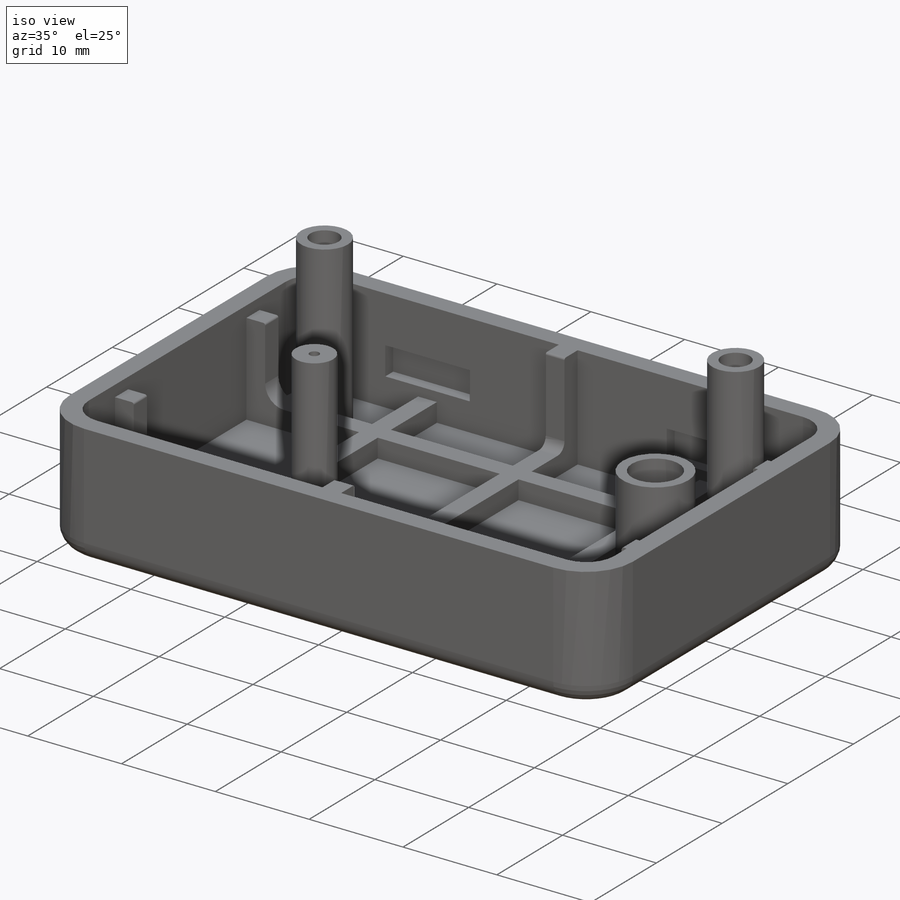
[diagram: iso view]
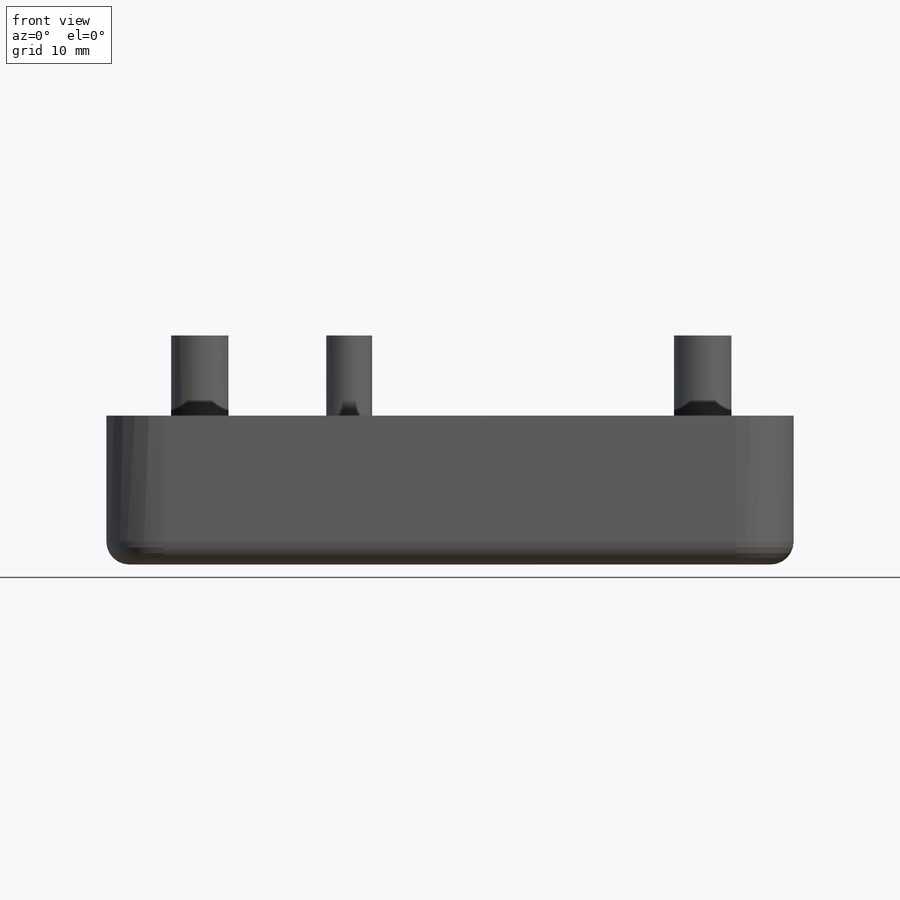
[diagram: front view]
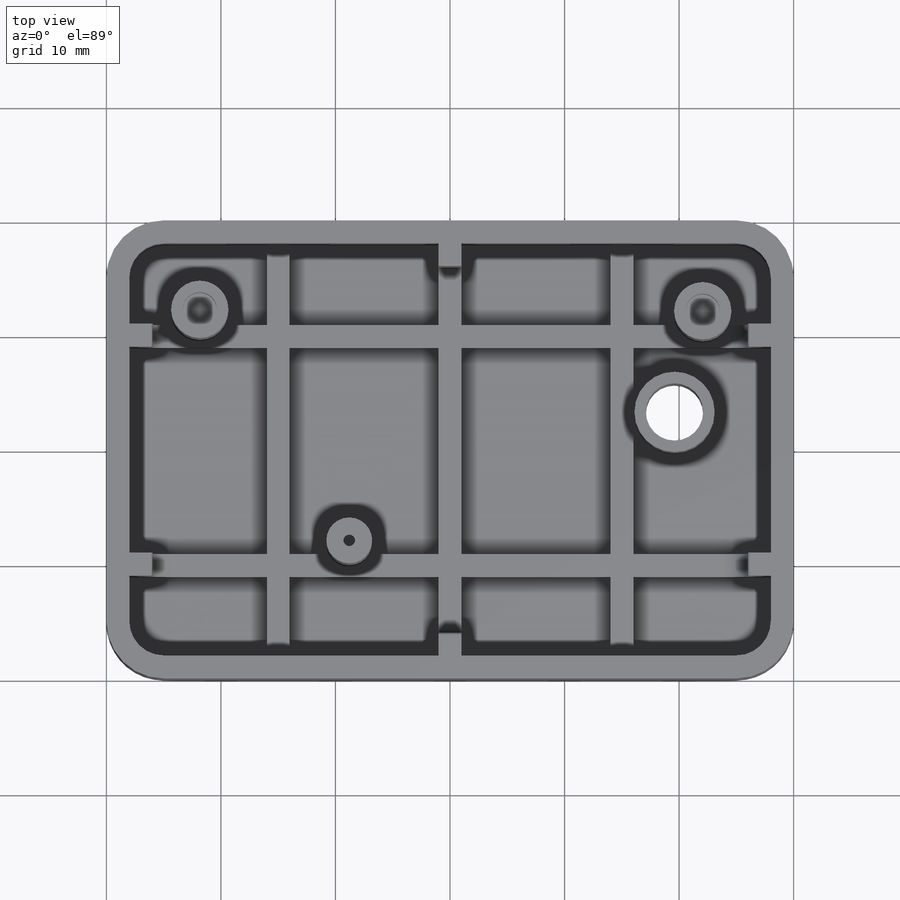
[diagram: top view]
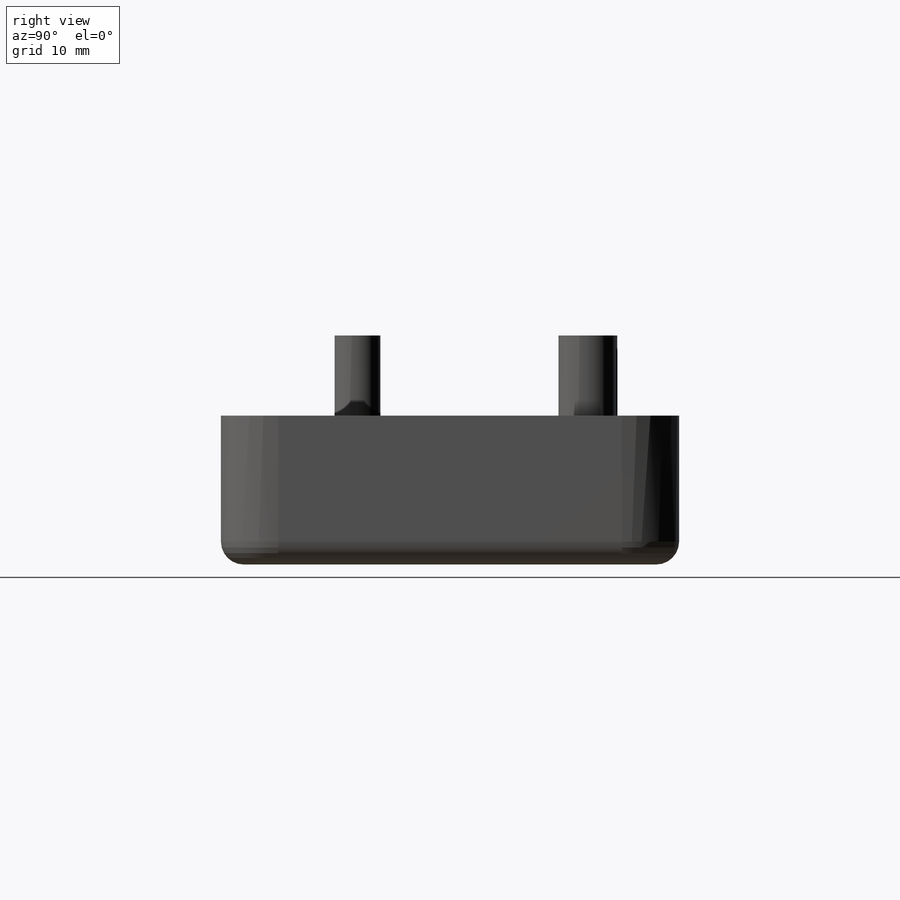
[diagram: right view]
SOLIDWORKS PART (.sldprt)
format: sldprt  version: not decoded by parser v0  size: 487,424 bytes
history: native  units: mm
features: sketch x10, plane x6, extrude x6, cut_extrude x4, fillet x2, material x1, shell x1, pattern_linear x1, mirror x1 (+10 scaffold rows collapsed)
feature tree (42):
  scaffold x10  (default folders/planes/origin — collapsed)
  material  "材质 <未指定>"
  plane  "前视基准面"
  plane  "上视基准面"
  plane  "右视基准面"
  sketch  "草图1"  dims[D1=60.0mm D2=40.0mm]
  extrude  "凸台-拉伸1"  Depth=13mm
  fillet  "圆角1"  Radius=5mm
  fillet  "圆角2"  Radius=2mm
  shell  "抽壳1"  Thickness=2mm
  sketch  "草图3"  dims[D4=1.0mm D5=0.2mm D1=2.0mm D2=2.0mm D3=2.0mm]
  extrude  "凸台-拉伸2"  Depth=2mm
  pattern_linear  "阵列(线性)1"  Count1=2 Count2=2 Spacing1=15mm Spacing2=15mm
  plane  "基准面1"  Offset=10mm
  sketch  "草图4"  dims[c1.D4=0.2mm c1.D5=2.0mm c1.D7=0.2mm c1.D1=2.0mm c1.D2=2.0mm c1.D3=2.0mm c1.D6=1.2mm c2.D4=1.2mm]
  extrude  "凸台-拉伸3"  Depth=2mm
  plane  "基准面2"  Offset=10mm
  extrude  "凸台-拉伸4"  [1 undecoded]
  sketch  "草图4<2>"  dims[D1=2.0mm]
  sketch  "草图5"  dims[D1=5.0mm D2=4.0mm]
  extrude  "凸台-拉伸5"  Depth=18mm
  sketch  "草图6"
  cut_extrude  "切除-拉伸1"  Depth=3mm
  sketch  "草图7"
  cut_extrude  "切除-拉伸2"  [1 undecoded]
  plane  "基准面3"
  sketch  "草图8"  dims[D1=1.2mm D2=3.0mm D3=5.0mm]
  cut_extrude  "切除-拉伸3"  Depth=9mm
  mirror  "镜向1"
  sketch  "草图9"  dims[D1=5.0mm]
  cut_extrude  "切除-拉伸4"  [1 undecoded]
  sketch  "草图10"  dims[D1=1.0mm]
  extrude  "凸台-拉伸6"  Depth=10mm
decode coverage: 19 of 25 modeling features carry decoded parameters
note: 3 parameter values undecoded
summary: no parameter record found for 3 features
note: suppression state not decoded; provenance and decode notes live in map.json
